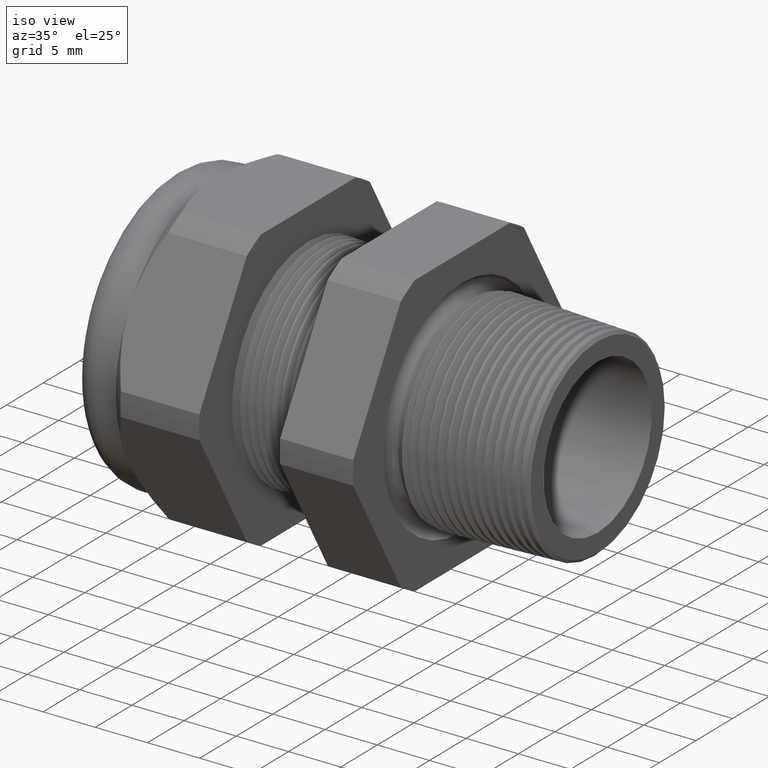
[diagram: clean part render]
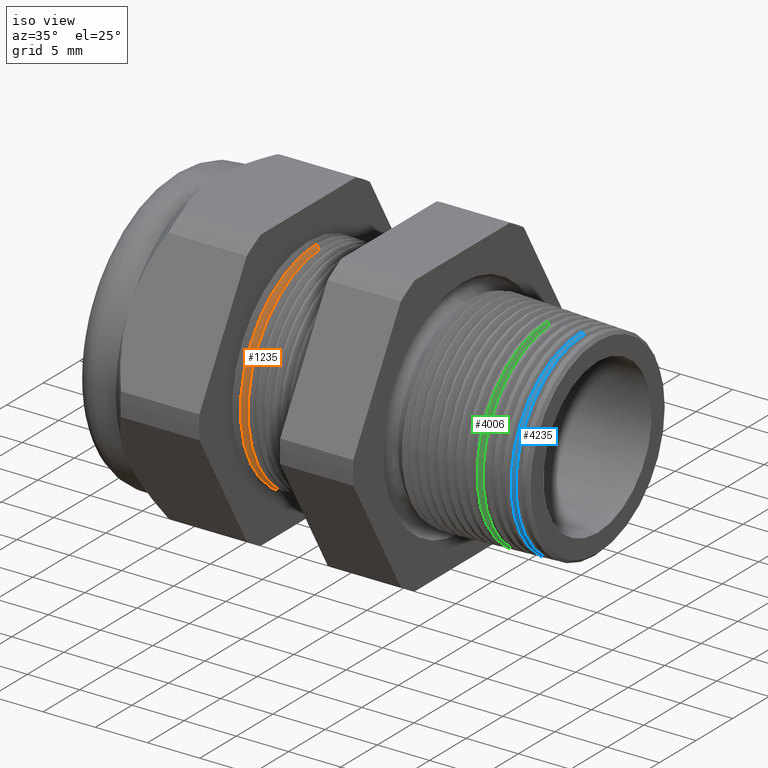
[diagram: same view with three faces highlighted in distinct colors, each labeled with its STEP entity id]
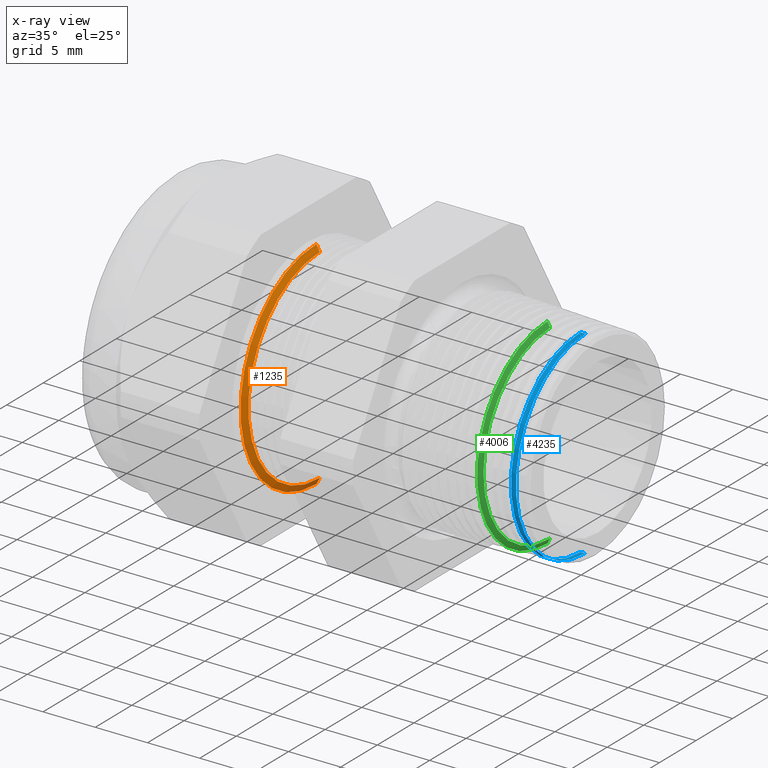
[diagram: x-ray of the same camera — body ghosted, the three highlighted faces saturated]
A machine part, iso view with three faces highlighted in distinct colors.
The next image is the same camera in x-ray (body ghosted, the three faces saturated) — at least one of them is partly hidden behind the body in this view.
Their STEP definitions:

[orange] entity #1235 — the highlighted conical surface has half-angle 62 deg.
#1235 = ADVANCED_FACE ( 'NONE', ( #5360 ), #5359, .T. ) ;
#1236 = EDGE_LOOP ( 'NONE', ( #1237, #1238, #1240, #1241 ) ) ;
#1237 = ORIENTED_EDGE ( 'NONE', *, *, #4529, .F. ) ;
#1238 = ORIENTED_EDGE ( 'NONE', *, *, #1239, .F. ) ;
#1239 = EDGE_CURVE ( 'NONE', #4462, #4524, #5358, .T. ) ;
#1240 = ORIENTED_EDGE ( 'NONE', *, *, #4455, .T. ) ;
#1241 = ORIENTED_EDGE ( 'NONE', *, *, #4625, .T. ) ;
#2940 = CARTESIAN_POINT ( 'NONE',  ( -0.8467624839723553200, 0.0000000000000000000, 0.3845114984791284100 ) ) ;
#2952 = DIRECTION ( 'NONE',  ( -0.4694715627859021900, 0.0000000000000000000, 0.8829475928589208800 ) ) ;
#2953 = VECTOR ( 'NONE', #2952, 39.37007874015748100 ) ;
#2954 = CARTESIAN_POINT ( 'NONE',  ( -0.8603149606299211900, 0.0000000000000000000, 0.4099999999999999800 ) ) ;
#2955 = LINE ( 'NONE', #2954, #2953 ) ;
#3070 = CARTESIAN_POINT ( 'NONE',  ( -0.8597473910926155500, 0.0000000000000000000, 0.4089325569502649800 ) ) ;
#3071 = CARTESIAN_POINT ( 'NONE',  ( -0.8597473910926155500, 5.008346749259060200E-017, -0.4089325569502649800 ) ) ;
#3072 = DIRECTION ( 'NONE',  ( -0.4694715627859021900, 1.081298943409537900E-016, -0.8829475928589208800 ) ) ;
#3073 = VECTOR ( 'NONE', #3072, 39.37007874015748100 ) ;
#3074 = CARTESIAN_POINT ( 'NONE',  ( -0.8603149606299211900, 5.021051876504148100E-017, -0.4099999999999999800 ) ) ;
#3075 = LINE ( 'NONE', #3074, #3073 ) ;
#3086 = CARTESIAN_POINT ( 'NONE',  ( -0.8467624839723553200, 4.858443613920508500E-017, -0.3845114984791284100 ) ) ;
#3265 = DIRECTION ( 'NONE',  ( 0.0000000000000000000, 0.0000000000000000000, 1.000000000000000000 ) ) ;
#3266 = DIRECTION ( 'NONE',  ( 1.000000000000000000, 0.0000000000000000000, 0.0000000000000000000 ) ) ;
#3267 = CARTESIAN_POINT ( 'NONE',  ( -0.8597473910926155500, 0.0000000000000000000, 0.0000000000000000000 ) ) ;
#3268 = AXIS2_PLACEMENT_3D ( 'NONE', #3267, #3266, #3265 ) ;
#3269 = CIRCLE ( 'NONE', #3268, 0.4089325569502649800 ) ;
#4455 = EDGE_CURVE ( 'NONE', #4462, #4531, #2955, .T. ) ;
#4462 = VERTEX_POINT ( 'NONE', #2940 ) ;
#4524 = VERTEX_POINT ( 'NONE', #3086 ) ;
#4529 = EDGE_CURVE ( 'NONE', #4524, #4530, #3075, .T. ) ;
#4530 = VERTEX_POINT ( 'NONE', #3071 ) ;
#4531 = VERTEX_POINT ( 'NONE', #3070 ) ;
#4625 = EDGE_CURVE ( 'NONE', #4531, #4530, #3269, .T. ) ;
#5350 = DIRECTION ( 'NONE',  ( 0.0000000000000000000, 0.0000000000000000000, -1.000000000000000000 ) ) ;
#5351 = DIRECTION ( 'NONE',  ( 1.000000000000000000, 0.0000000000000000000, 0.0000000000000000000 ) ) ;
#5352 = CARTESIAN_POINT ( 'NONE',  ( -0.8467624839723553200, 0.0000000000000000000, 0.0000000000000000000 ) ) ;
#5353 = AXIS2_PLACEMENT_3D ( 'NONE', #5352, #5351, #5350 ) ;
#5354 = DIRECTION ( 'NONE',  ( 0.0000000000000000000, 0.0000000000000000000, 1.000000000000000000 ) ) ;
#5355 = DIRECTION ( 'NONE',  ( -1.000000000000000000, 0.0000000000000000000, 0.0000000000000000000 ) ) ;
#5356 = CARTESIAN_POINT ( 'NONE',  ( -0.8603149606299211900, 0.0000000000000000000, 0.0000000000000000000 ) ) ;
#5357 = AXIS2_PLACEMENT_3D ( 'NONE', #5356, #5355, #5354 ) ;
#5358 = CIRCLE ( 'NONE', #5353, 0.3845114984791284100 ) ;
#5359 = CONICAL_SURFACE ( 'NONE', #5357, 0.4099999999999999800, 1.082104136236471400 ) ;
#5360 = FACE_OUTER_BOUND ( 'NONE', #1236, .T. ) ;

[blue] entity #4235 — the highlighted conical surface has half-angle 2 deg.
#21 = CARTESIAN_POINT ( 'NONE',  ( 0.1356508413671547200, 4.582291357438720900E-017, -0.3741724847220513900 ) ) ;
#106 = CARTESIAN_POINT ( 'NONE',  ( 0.1536081379824684700, 0.0000000000000000000, 0.3735454021062532000 ) ) ;
#123 = CARTESIAN_POINT ( 'NONE',  ( 0.1536081379824684700, 4.578451583847530900E-017, -0.3735454021062532000 ) ) ;
#142 = CARTESIAN_POINT ( 'NONE',  ( 0.1356508413671547200, 0.0000000000000000000, 0.3741724847220513900 ) ) ;
#863 = DIRECTION ( 'NONE',  ( 0.0000000000000000000, 0.0000000000000000000, -1.000000000000000000 ) ) ;
#864 = DIRECTION ( 'NONE',  ( -1.000000000000000000, 0.0000000000000000000, 0.0000000000000000000 ) ) ;
#865 = CARTESIAN_POINT ( 'NONE',  ( 0.1356508413671547200, 0.0000000000000000000, 0.0000000000000000000 ) ) ;
#866 = AXIS2_PLACEMENT_3D ( 'NONE', #865, #864, #863 ) ;
#867 = CIRCLE ( 'NONE', #866, 0.3741724847220512800 ) ;
#1364 = VERTEX_POINT ( 'NONE', #21 ) ;
#1413 = VERTEX_POINT ( 'NONE', #123 ) ;
#1420 = VERTEX_POINT ( 'NONE', #106 ) ;
#1432 = VERTEX_POINT ( 'NONE', #142 ) ;
#1937 = DIRECTION ( 'NONE',  ( 0.0000000000000000000, 0.0000000000000000000, 1.000000000000000000 ) ) ;
#1938 = DIRECTION ( 'NONE',  ( 1.000000000000000000, 0.0000000000000000000, 0.0000000000000000000 ) ) ;
#1939 = CARTESIAN_POINT ( 'NONE',  ( 0.1536081379824684700, 0.0000000000000000000, 0.0000000000000000000 ) ) ;
#1940 = AXIS2_PLACEMENT_3D ( 'NONE', #1939, #1938, #1937 ) ;
#1941 = CIRCLE ( 'NONE', #1940, 0.3735454021062532000 ) ;
#2061 = EDGE_CURVE ( 'NONE', #1364, #1432, #867, .T. ) ;
#2062 = ORIENTED_EDGE ( 'NONE', *, *, #2061, .F. ) ;
#2495 = DIRECTION ( 'NONE',  ( -0.9993908270190959800, 4.273955692856259700E-018, -0.03489949670249376700 ) ) ;
#2496 = VECTOR ( 'NONE', #2495, 39.37007874015748100 ) ;
#2497 = CARTESIAN_POINT ( 'NONE',  ( 0.2000000000000000400, 4.554772048132102800E-017, -0.3719253625864463700 ) ) ;
#2501 = LINE ( 'NONE', #2497, #2496 ) ;
#2504 = DIRECTION ( 'NONE',  ( 0.0000000000000000000, 0.0000000000000000000, 1.000000000000000000 ) ) ;
#2505 = DIRECTION ( 'NONE',  ( -1.000000000000000000, 0.0000000000000000000, 0.0000000000000000000 ) ) ;
#2506 = CARTESIAN_POINT ( 'NONE',  ( 0.2000000000000000400, 0.0000000000000000000, 0.0000000000000000000 ) ) ;
#2507 = AXIS2_PLACEMENT_3D ( 'NONE', #2506, #2505, #2504 ) ;
#2509 = CONICAL_SURFACE ( 'NONE', #2507, 0.3719253625864463700, 0.03490658503987938100 ) ;
#2510 = FACE_OUTER_BOUND ( 'NONE', #4229, .T. ) ;
#2511 = DIRECTION ( 'NONE',  ( -0.9993908270190959800, 0.0000000000000000000, 0.03489949670249376700 ) ) ;
#2512 = VECTOR ( 'NONE', #2511, 39.37007874015748100 ) ;
#2513 = CARTESIAN_POINT ( 'NONE',  ( 0.2000000000000000400, 0.0000000000000000000, 0.3719253625864463700 ) ) ;
#2514 = LINE ( 'NONE', #2513, #2512 ) ;
#3843 = ORIENTED_EDGE ( 'NONE', *, *, #4231, .T. ) ;
#3918 = ORIENTED_EDGE ( 'NONE', *, *, #3919, .F. ) ;
#3919 = EDGE_CURVE ( 'NONE', #1420, #1413, #1941, .T. ) ;
#4227 = ORIENTED_EDGE ( 'NONE', *, *, #4238, .F. ) ;
#4229 = EDGE_LOOP ( 'NONE', ( #4227, #3918, #3843, #2062 ) ) ;
#4231 = EDGE_CURVE ( 'NONE', #1420, #1432, #2514, .T. ) ;
#4235 = ADVANCED_FACE ( 'NONE', ( #2510 ), #2509, .T. ) ;
#4238 = EDGE_CURVE ( 'NONE', #1413, #1364, #2501, .T. ) ;

[green] entity #4006 — the highlighted conical surface has half-angle 62 deg.
#132 = CARTESIAN_POINT ( 'NONE',  ( 0.02126297198907897000, 0.0000000000000000000, 0.3591487532021881400 ) ) ;
#133 = CARTESIAN_POINT ( 'NONE',  ( 0.02126297198907897000, 4.516960043591983400E-017, -0.3591487532021881400 ) ) ;
#256 = CARTESIAN_POINT ( 'NONE',  ( 0.01095948014170899200, 4.638250513450903700E-017, -0.3785268030050164500 ) ) ;
#257 = DIRECTION ( 'NONE',  ( -0.4694715627859013500, 1.081298943409538200E-016, -0.8829475928589212200 ) ) ;
#258 = VECTOR ( 'NONE', #257, 39.37007874015748900 ) ;
#259 = CARTESIAN_POINT ( 'NONE',  ( 0.005000000000000083400, 4.772876651899397700E-017, -0.3897349550272340400 ) ) ;
#260 = LINE ( 'NONE', #259, #258 ) ;
#267 = CARTESIAN_POINT ( 'NONE',  ( 0.01095948014170899200, 0.0000000000000000000, 0.3785268030050164500 ) ) ;
#322 = DIRECTION ( 'NONE',  ( -0.4694715627859013500, 0.0000000000000000000, 0.8829475928589212200 ) ) ;
#323 = VECTOR ( 'NONE', #322, 39.37007874015748900 ) ;
#324 = CARTESIAN_POINT ( 'NONE',  ( 0.005000000000000083400, 0.0000000000000000000, 0.3897349550272340400 ) ) ;
#325 = LINE ( 'NONE', #324, #323 ) ;
#1405 = VERTEX_POINT ( 'NONE', #133 ) ;
#1406 = VERTEX_POINT ( 'NONE', #132 ) ;
#1472 = EDGE_CURVE ( 'NONE', #1405, #1473, #260, .T. ) ;
#1473 = VERTEX_POINT ( 'NONE', #256 ) ;
#1503 = VERTEX_POINT ( 'NONE', #267 ) ;
#1505 = EDGE_CURVE ( 'NONE', #1406, #1503, #325, .T. ) ;
#2065 = DIRECTION ( 'NONE',  ( 0.0000000000000000000, 0.0000000000000000000, 1.000000000000000000 ) ) ;
#2066 = DIRECTION ( 'NONE',  ( -1.000000000000000000, 0.0000000000000000000, 0.0000000000000000000 ) ) ;
#2067 = AXIS2_PLACEMENT_3D ( 'NONE', #2075, #2066, #2065 ) ;
#2069 = CONICAL_SURFACE ( 'NONE', #2067, 0.3897349550272340400, 1.082104136236472300 ) ;
#2070 = FACE_OUTER_BOUND ( 'NONE', #4004, .T. ) ;
#2075 = CARTESIAN_POINT ( 'NONE',  ( 0.005000000000000083400, 0.0000000000000000000, 0.0000000000000000000 ) ) ;
#2107 = DIRECTION ( 'NONE',  ( 0.0000000000000000000, 0.0000000000000000000, -1.000000000000000000 ) ) ;
#2108 = DIRECTION ( 'NONE',  ( 1.000000000000000000, 0.0000000000000000000, 0.0000000000000000000 ) ) ;
#2109 = AXIS2_PLACEMENT_3D ( 'NONE', #2114, #2108, #2107 ) ;
#2110 = CIRCLE ( 'NONE', #2109, 0.3591487532021881400 ) ;
#2114 = CARTESIAN_POINT ( 'NONE',  ( 0.02126297198907897000, 0.0000000000000000000, 0.0000000000000000000 ) ) ;
#2529 = DIRECTION ( 'NONE',  ( 0.0000000000000000000, 0.0000000000000000000, 1.000000000000000000 ) ) ;
#2530 = DIRECTION ( 'NONE',  ( 1.000000000000000000, 0.0000000000000000000, 0.0000000000000000000 ) ) ;
#2531 = CARTESIAN_POINT ( 'NONE',  ( 0.01095948014170899200, 0.0000000000000000000, 0.0000000000000000000 ) ) ;
#2532 = AXIS2_PLACEMENT_3D ( 'NONE', #2531, #2530, #2529 ) ;
#2533 = CIRCLE ( 'NONE', #2532, 0.3785268030050164500 ) ;
#4001 = ORIENTED_EDGE ( 'NONE', *, *, #4025, .F. ) ;
#4004 = EDGE_LOOP ( 'NONE', ( #4005, #4001, #4023, #4024 ) ) ;
#4005 = ORIENTED_EDGE ( 'NONE', *, *, #1472, .F. ) ;
#4006 = ADVANCED_FACE ( 'NONE', ( #2070 ), #2069, .T. ) ;
#4023 = ORIENTED_EDGE ( 'NONE', *, *, #1505, .T. ) ;
#4024 = ORIENTED_EDGE ( 'NONE', *, *, #4253, .T. ) ;
#4025 = EDGE_CURVE ( 'NONE', #1406, #1405, #2110, .T. ) ;
#4253 = EDGE_CURVE ( 'NONE', #1503, #1473, #2533, .T. ) ;